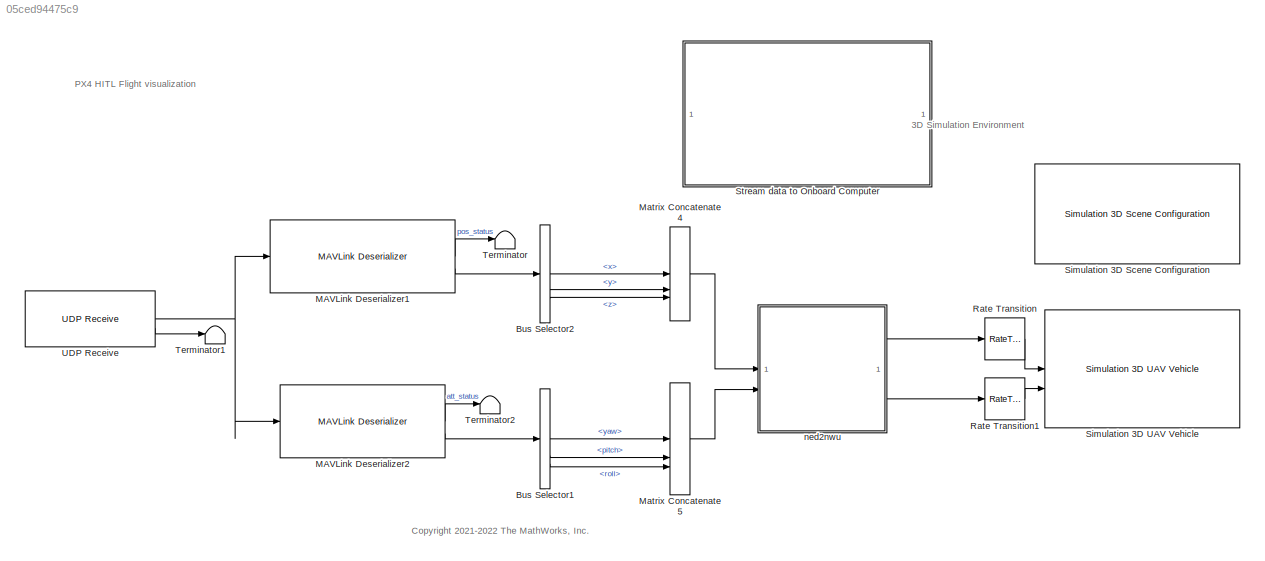
MODEL slx_05ced94475c9
KIND model
CONFIG AbsTol = auto
CONFIG EnableMultiTasking = off
CONFIG FixedStep = auto
CONFIG MaxStep = auto
CONFIG MinStep = auto
CONFIG RelTol = 1e-3
CONFIG SampleTimeConstraint = Unconstrained
CONFIG SolverName = VariableStepAuto
CONFIG StartTime = 0.0
CONFIG StopTime = inf
BLOCK [BusSelector] Bus Selector1
  OutputSignals = Payload.yaw,Payload.pitch,Payload.roll
BLOCK [BusSelector] Bus Selector2
  OutputSignals = Payload.x,Payload.y,Payload.z
BLOCK [Reference] MAVLink Deserializer1  REF=uavmavlinklib/MAVLink Deserializer
  SourceBlock = uavmavlinklib/MAVLink Deserializer
  SourceType = MAVLink Deserializer
BLOCK [Reference] MAVLink Deserializer2  REF=uavmavlinklib/MAVLink Deserializer
  SourceBlock = uavmavlinklib/MAVLink Deserializer
  SourceType = MAVLink Deserializer
BLOCK [Concatenate] Matrix Concatenate4
  Mode = Multidimensional array
  NumInputs = 3
BLOCK [Concatenate] Matrix Concatenate5
  Mode = Multidimensional array
  NumInputs = 3
BLOCK [RateTransition] Rate Transition
BLOCK [RateTransition] Rate Transition1
BLOCK [Reference] Simulation 3D Scene Configuration  REF=sim3dlib/Simulation 3D Scene Configuration
  Priority = 0
  SourceBlock = sim3dlib/Simulation 3D Scene Configuration
  SourceType = Simulation 3D Scene Configuration
BLOCK [Reference] Simulation 3D UAV Vehicle  REF=uavsim3dlib/Simulation 3D UAV Vehicle
  Priority = -1
  SourceBlock = uavsim3dlib/Simulation 3D UAV Vehicle
  SourceType = Simulation 3D UAV Vehicle
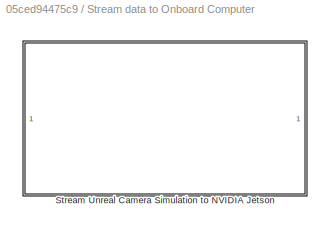
BLOCK [SubSystem] Stream data to Onboard Computer
  AllowZeroVariantControls = on
  Variant = on
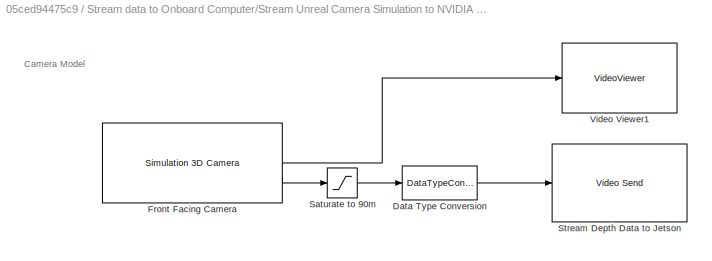
BLOCK [SubSystem] Stream data to Onboard Computer/Stream Unreal Camera Simulation to NVIDIA Jetson
  VariantControl = enableOnboardStreaming == 1
BLOCK [DataTypeConversion] Stream data to Onboard Computer/Stream Unreal Camera Simulation to NVIDIA Jetson/Data Type Conversion
  OutDataTypeStr = uint8
  RndMeth = Floor
  SaturateOnIntegerOverflow = off
BLOCK [Reference] Stream data to Onboard Computer/Stream Unreal Camera Simulation to NVIDIA Jetson/Front Facing Camera  REF=sim3dcameralib/Simulation 3D Camera
  Priority = 1
  SourceBlock = sim3dcameralib/Simulation 3D Camera
  SourceType = Simulation 3D Camera
BLOCK [Saturate] Stream data to Onboard Computer/Stream Unreal Camera Simulation to NVIDIA Jetson/Saturate to 90m
  LowerLimit = 0
  UpperLimit = 255
BLOCK [Reference] Stream data to Onboard Computer/Stream Unreal Camera Simulation to NVIDIA Jetson/Stream Depth Data to Jetson  REF=uavsim3dlib/Video Send
  SourceBlock = uavsim3dlib/Video Send
  SourceType = uav.sluav.internal.system.VideoSend
BLOCK [VideoViewer] Stream data to Onboard Computer/Stream Unreal Camera Simulation to NVIDIA Jetson/Video Viewer1
  FigPos = [2 675 1272 567]
  ScopeSpecificationString = vipscopes.VideoViewerScopeCfg('CurrentConfiguration', extmgr.ConfigurationSet(extmgr.Configuration('Core','General UI',true),extmgr.Configuration('Core','Source UI',true),extmgr.Configuration('Sources','WiredSimulink',true),extmgr.Configuration('Visuals','Video',true),extmgr.Configuration('Tools','Image Navigation Tools',true),extmgr.Configuration('Tools','Image Tool',true),extmgr.Configuration('T...<+74ch>
BLOCK [Terminator] Terminator
BLOCK [Terminator] Terminator1
BLOCK [Terminator] Terminator2
BLOCK [Reference] UDP Receive  REF=instrumentlib/UDP Receive
  SourceBlock = instrumentlib/UDP Receive
  SourceType = instrument.system.UDPReceive
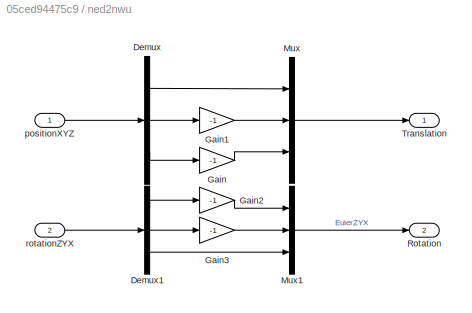
BLOCK [SubSystem] ned2nwu
BLOCK [Demux] ned2nwu/Demux
  Outputs = 3
BLOCK [Demux] ned2nwu/Demux1
  Outputs = 3
BLOCK [Gain] ned2nwu/Gain
  Gain = -1
BLOCK [Gain] ned2nwu/Gain1
  Gain = -1
BLOCK [Gain] ned2nwu/Gain2
  Gain = -1
BLOCK [Gain] ned2nwu/Gain3
  Gain = -1
BLOCK [Mux] ned2nwu/Mux
  DisplayOption = bar
  Inputs = 3
BLOCK [Mux] ned2nwu/Mux1
  DisplayOption = bar
  Inputs = 3
BLOCK [Outport] ned2nwu/Rotation
  Port = 2
BLOCK [Outport] ned2nwu/Translation
BLOCK [Inport] ned2nwu/positionXYZ
BLOCK [Inport] ned2nwu/rotationZYX
  Port = 2
ANNOTATION (root): 3D Simulation Environment
ANNOTATION (root): PX4 HITL Flight visualization
ANNOTATION (root): <copyright redacted>
ANNOTATION Stream data to Onboard Computer/Stream Unreal Camera Simulation to NVIDIA Jetson: Camera Model
LINE Bus Selector1:1 -> Matrix Concatenate5:1
LINE Bus Selector1:2 -> Matrix Concatenate5:2
LINE Bus Selector1:3 -> Matrix Concatenate5:3
LINE Bus Selector2:1 -> Matrix Concatenate4:1
LINE Bus Selector2:2 -> Matrix Concatenate4:2
LINE Bus Selector2:3 -> Matrix Concatenate4:3
LINE MAVLink Deserializer1:1 -> Terminator:1
LINE MAVLink Deserializer1:2 -> Bus Selector2:1
LINE MAVLink Deserializer2:1 -> Terminator2:1
LINE MAVLink Deserializer2:2 -> Bus Selector1:1
LINE Matrix Concatenate4:1 -> ned2nwu:1
LINE Matrix Concatenate5:1 -> ned2nwu:2
LINE Rate Transition1:1 -> Simulation 3D UAV Vehicle:2
LINE Rate Transition:1 -> Simulation 3D UAV Vehicle:1
LINE Stream data to Onboard Computer/Stream Unreal Camera Simulation to NVIDIA Jetson/Data Type Conversion:1 -> Stream data to Onboard Computer/Stream Unreal Camera Simulation to NVIDIA Jetson/Stream Depth Data to Jetson:1
LINE Stream data to Onboard Computer/Stream Unreal Camera Simulation to NVIDIA Jetson/Front Facing Camera:1 -> Stream data to Onboard Computer/Stream Unreal Camera Simulation to NVIDIA Jetson/Video Viewer1:1
LINE Stream data to Onboard Computer/Stream Unreal Camera Simulation to NVIDIA Jetson/Front Facing Camera:2 -> Stream data to Onboard Computer/Stream Unreal Camera Simulation to NVIDIA Jetson/Saturate to 90m:1
LINE Stream data to Onboard Computer/Stream Unreal Camera Simulation to NVIDIA Jetson/Saturate to 90m:1 -> Stream data to Onboard Computer/Stream Unreal Camera Simulation to NVIDIA Jetson/Data Type Conversion:1
NET UDP Receive:1 -> MAVLink Deserializer1:1, MAVLink Deserializer2:1
LINE UDP Receive:2 -> Terminator1:1
LINE ned2nwu/Demux1:1 -> ned2nwu/Gain2:1
LINE ned2nwu/Demux1:2 -> ned2nwu/Gain3:1
LINE ned2nwu/Demux1:3 -> ned2nwu/Mux1:3
LINE ned2nwu/Demux:1 -> ned2nwu/Mux:1
LINE ned2nwu/Demux:2 -> ned2nwu/Gain1:1
LINE ned2nwu/Demux:3 -> ned2nwu/Gain:1
LINE ned2nwu/Gain1:1 -> ned2nwu/Mux:2
LINE ned2nwu/Gain2:1 -> ned2nwu/Mux1:1
LINE ned2nwu/Gain3:1 -> ned2nwu/Mux1:2
LINE ned2nwu/Gain:1 -> ned2nwu/Mux:3
LINE ned2nwu/Mux1:1 -> ned2nwu/Rotation:1
LINE ned2nwu/Mux:1 -> ned2nwu/Translation:1
LINE ned2nwu/positionXYZ:1 -> ned2nwu/Demux:1
LINE ned2nwu/rotationZYX:1 -> ned2nwu/Demux1:1
LINE ned2nwu:1 -> Rate Transition:1
LINE ned2nwu:2 -> Rate Transition1:1
note: NET lines group one-source signal fan-out (src -> all destinations, sorted); 1:1 wires keep LINE
